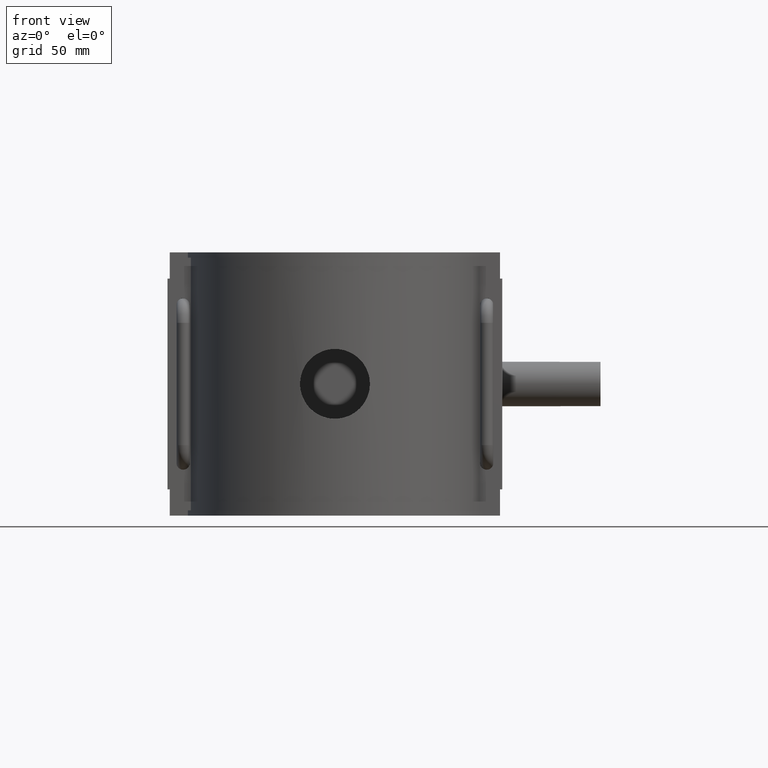
[diagram: clean part render]
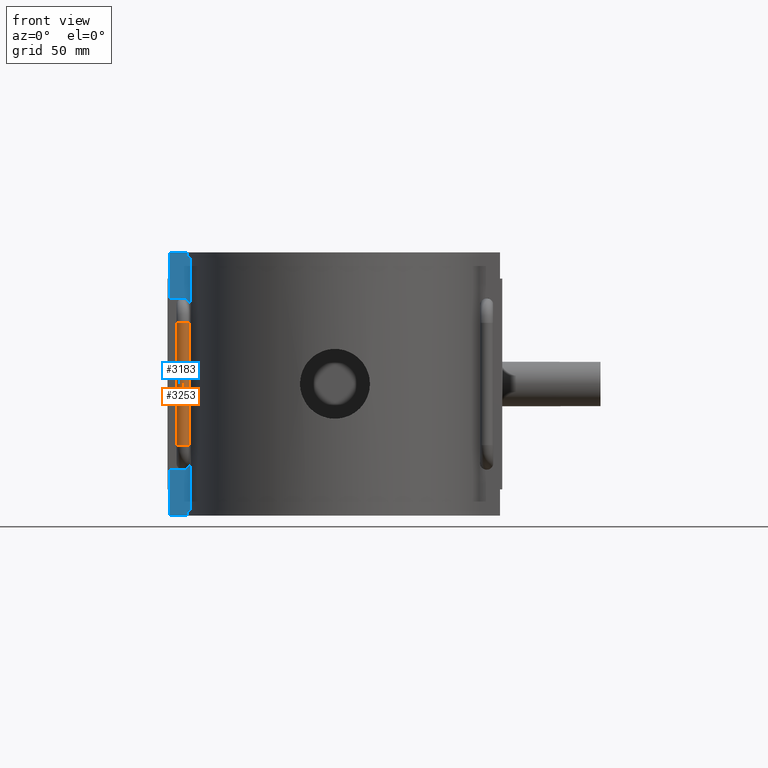
[diagram: same view with the hole feature highlighted: cylindrical wall and planar end face, labeled with their STEP entity ids]
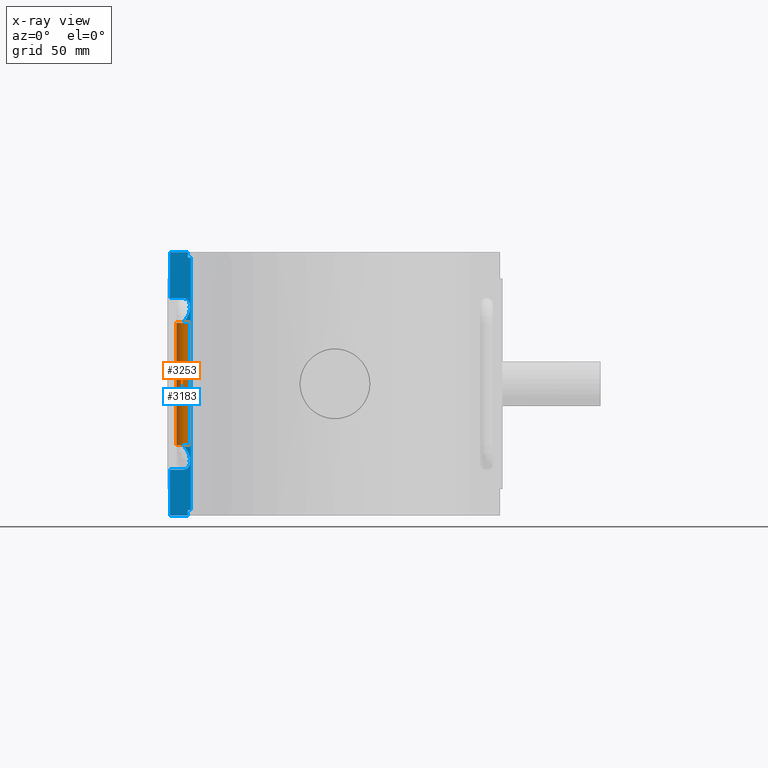
[diagram: x-ray of the same camera — body ghosted, the hole faces saturated]
A machine part, front view. The highlighted faces form one hole feature of diameter 6 mm: the cylindrical wall (entity #3253, orange) and its adjacent planar end face (entity #3183, blue) — they share a circular edge in the B-rep.
The next image is the same camera in x-ray (body ghosted, the hole faces saturated) — the bore reads through the body.
Wall:
#121=LINE('',#5456,#408);
#408=VECTOR('',#3906,54.8);
#806=CIRCLE('',#3498,3.);
#810=CIRCLE('',#3503,3.);
#1025=FACE_OUTER_BOUND('',#1252,.T.);
#1252=EDGE_LOOP('',(#2760,#2761,#2762,#2763));
#1484=VERTEX_POINT('',#5442);
#1485=VERTEX_POINT('',#5455);
#1837=EDGE_CURVE('',#1485,#1484,#121,.T.);
#2000=EDGE_CURVE('',#1485,#1485,#806,.T.);
#2010=EDGE_CURVE('',#1484,#1484,#810,.T.);
#2760=ORIENTED_EDGE('',*,*,#2010,.F.);
#2761=ORIENTED_EDGE('',*,*,#1837,.F.);
#2762=ORIENTED_EDGE('',*,*,#2000,.T.);
#2763=ORIENTED_EDGE('',*,*,#1837,.T.);
#3110=CYLINDRICAL_SURFACE('',#3529,3.);
#3253=ADVANCED_FACE('',(#1025),#3110,.T.);
#3498=AXIS2_PLACEMENT_3D('',#6177,#4176,#4177);
#3503=AXIS2_PLACEMENT_3D('',#6255,#4186,#4187);
#3529=AXIS2_PLACEMENT_3D('',#6338,#4252,#4253);
#3906=DIRECTION('',(0.,-1.62076353959877E-16,1.));
#4176=DIRECTION('center_axis',(0.,6.12323399573677E-17,1.));
#4177=DIRECTION('ref_axis',(1.,0.,0.));
#4186=DIRECTION('center_axis',(0.,6.12323399573677E-17,1.));
#4187=DIRECTION('ref_axis',(1.,0.,0.));
#4252=DIRECTION('center_axis',(0.,-1.62076353959877E-16,1.));
#4253=DIRECTION('ref_axis',(1.,0.,0.));
#5442=CARTESIAN_POINT('',(-68.,-13.75,27.4));
#5455=CARTESIAN_POINT('',(-68.,-13.75,-27.4));
#5456=CARTESIAN_POINT('',(-68.,-13.75,27.4));
#6177=CARTESIAN_POINT('Origin',(-68.,-16.7499999999993,-27.4));
#6255=CARTESIAN_POINT('Origin',(-68.,-16.7499999999993,27.4));
#6338=CARTESIAN_POINT('Origin',(-68.,-16.7499999999993,27.4));
End face:
#108=LINE('',#5412,#395);
#109=LINE('',#5415,#396);
#115=LINE('',#5429,#402);
#116=LINE('',#5431,#403);
#117=LINE('',#5433,#404);
#118=LINE('',#5435,#405);
#119=LINE('',#5437,#406);
#120=LINE('',#5439,#407);
#121=LINE('',#5456,#408);
#122=LINE('',#5473,#409);
#123=LINE('',#5475,#410);
#124=LINE('',#5476,#411);
#395=VECTOR('',#3883,2.36);
#396=VECTOR('',#3886,1.34901356519471);
#402=VECTOR('',#3898,113.28);
#403=VECTOR('',#3899,1.34901356519471);
#404=VECTOR('',#3900,2.36);
#405=VECTOR('',#3901,8.09916616612503);
#406=VECTOR('',#3902,20.6);
#407=VECTOR('',#3903,6.02433467297777);
#408=VECTOR('',#3906,54.8);
#409=VECTOR('',#3909,6.02433467297777);
#410=VECTOR('',#3910,20.6);
#411=VECTOR('',#3911,8.09916616612503);
#645=PLANE('',#3418);
#776=CIRCLE('',#3419,3.);
#777=CIRCLE('',#3420,3.);
#955=FACE_OUTER_BOUND('',#1156,.T.);
#1156=EDGE_LOOP('',(#2408,#2409,#2410,#2411,#2412,#2413,#2414,#2415,#2416,
#2417,#2418,#2419,#2420,#2421,#2422,#2423));
#1343=B_SPLINE_CURVE_WITH_KNOTS('',3,(#5443,#5444,#5445,#5446,#5447,#5448,
#5449,#5450,#5451,#5452,#5453,#5454),.UNSPECIFIED.,.F.,.F.,(4,2,2,2,2,4),
(1.5541826746921,1.64143836729109,1.76844964601288,1.89546092473467,2.1009420105833,
2.30642309643193),.UNSPECIFIED.);
#1344=B_SPLINE_CURVE_WITH_KNOTS('',3,(#5458,#5459,#5460,#5461,#5462,#5463,
#5464,#5465,#5466,#5467,#5468,#5469),.UNSPECIFIED.,.F.,.F.,(4,2,2,2,2,4),
(0.,0.205481085848628,0.410962171697256,0.537973450419046,0.664984729140836,
0.752240421739825),.UNSPECIFIED.);
#1468=VERTEX_POINT('',#5405);
#1471=VERTEX_POINT('',#5410);
#1472=VERTEX_POINT('',#5414);
#1477=VERTEX_POINT('',#5428);
#1478=VERTEX_POINT('',#5430);
#1479=VERTEX_POINT('',#5432);
#1480=VERTEX_POINT('',#5434);
#1481=VERTEX_POINT('',#5436);
#1482=VERTEX_POINT('',#5438);
#1483=VERTEX_POINT('',#5440);
#1484=VERTEX_POINT('',#5442);
#1485=VERTEX_POINT('',#5455);
#1486=VERTEX_POINT('',#5457);
#1487=VERTEX_POINT('',#5470);
#1488=VERTEX_POINT('',#5472);
#1489=VERTEX_POINT('',#5474);
#1821=EDGE_CURVE('',#1468,#1471,#108,.T.);
#1822=EDGE_CURVE('',#1471,#1472,#109,.T.);
#1829=EDGE_CURVE('',#1472,#1477,#115,.T.);
#1830=EDGE_CURVE('',#1477,#1478,#116,.T.);
#1831=EDGE_CURVE('',#1478,#1479,#117,.T.);
#1832=EDGE_CURVE('',#1480,#1479,#118,.T.);
#1833=EDGE_CURVE('',#1481,#1480,#119,.T.);
#1834=EDGE_CURVE('',#1481,#1482,#120,.T.);
#1835=EDGE_CURVE('',#1482,#1483,#776,.T.);
#1836=EDGE_CURVE('',#1483,#1484,#1343,.T.);
#1837=EDGE_CURVE('',#1485,#1484,#121,.T.);
#1838=EDGE_CURVE('',#1485,#1486,#1344,.T.);
#1839=EDGE_CURVE('',#1486,#1487,#777,.T.);
#1840=EDGE_CURVE('',#1487,#1488,#122,.T.);
#1841=EDGE_CURVE('',#1489,#1488,#123,.T.);
#1842=EDGE_CURVE('',#1468,#1489,#124,.T.);
#2408=ORIENTED_EDGE('',*,*,#1821,.T.);
#2409=ORIENTED_EDGE('',*,*,#1822,.T.);
#2410=ORIENTED_EDGE('',*,*,#1829,.T.);
#2411=ORIENTED_EDGE('',*,*,#1830,.T.);
#2412=ORIENTED_EDGE('',*,*,#1831,.T.);
#2413=ORIENTED_EDGE('',*,*,#1832,.F.);
#2414=ORIENTED_EDGE('',*,*,#1833,.F.);
#2415=ORIENTED_EDGE('',*,*,#1834,.T.);
#2416=ORIENTED_EDGE('',*,*,#1835,.T.);
#2417=ORIENTED_EDGE('',*,*,#1836,.T.);
#2418=ORIENTED_EDGE('',*,*,#1837,.F.);
#2419=ORIENTED_EDGE('',*,*,#1838,.T.);
#2420=ORIENTED_EDGE('',*,*,#1839,.T.);
#2421=ORIENTED_EDGE('',*,*,#1840,.T.);
#2422=ORIENTED_EDGE('',*,*,#1841,.F.);
#2423=ORIENTED_EDGE('',*,*,#1842,.F.);
#3183=ADVANCED_FACE('',(#955),#645,.T.);
#3418=AXIS2_PLACEMENT_3D('',#5427,#3896,#3897);
#3419=AXIS2_PLACEMENT_3D('',#5441,#3904,#3905);
#3420=AXIS2_PLACEMENT_3D('',#5471,#3907,#3908);
#3883=DIRECTION('',(0.,0.,1.));
#3886=DIRECTION('',(1.,0.,0.));
#3896=DIRECTION('center_axis',(0.,-1.,0.));
#3897=DIRECTION('ref_axis',(1.,0.,0.));
#3898=DIRECTION('',(0.,0.,1.));
#3899=DIRECTION('',(-1.,0.,0.));
#3900=DIRECTION('',(0.,0.,1.));
#3901=DIRECTION('',(1.,0.,0.));
#3902=DIRECTION('',(0.,0.,1.));
#3903=DIRECTION('',(1.,0.,-7.37158929503087E-16));
#3904=DIRECTION('center_axis',(0.,1.,0.));
#3905=DIRECTION('ref_axis',(-1.,0.,0.));
#3906=DIRECTION('',(0.,-1.62076353959877E-16,1.));
#3907=DIRECTION('center_axis',(0.,1.,0.));
#3908=DIRECTION('ref_axis',(-1.,0.,0.));
#3909=DIRECTION('',(-1.,0.,0.));
#3910=DIRECTION('',(0.,0.,1.));
#3911=DIRECTION('',(-1.,0.,0.));
#5405=CARTESIAN_POINT('',(-65.900833833875,-13.75,-59.));
#5410=CARTESIAN_POINT('',(-65.900833833875,-13.75,-56.64));
#5412=CARTESIAN_POINT('',(-65.900833833875,-13.75,-59.));
#5414=CARTESIAN_POINT('',(-64.5518202686803,-13.75,-56.64));
#5415=CARTESIAN_POINT('',(-37.,-13.75,-56.64));
#5427=CARTESIAN_POINT('Origin',(-74.,-13.75,0.));
#5428=CARTESIAN_POINT('',(-64.5518202686803,-13.75,56.64));
#5429=CARTESIAN_POINT('',(-64.5518202686803,-13.75,0.));
#5430=CARTESIAN_POINT('',(-65.900833833875,-13.75,56.64));
#5431=CARTESIAN_POINT('',(-37.,-13.75,56.64));
#5432=CARTESIAN_POINT('',(-65.900833833875,-13.75,59.));
#5433=CARTESIAN_POINT('',(-65.900833833875,-13.75,59.));
#5434=CARTESIAN_POINT('',(-74.,-13.75,59.));
#5435=CARTESIAN_POINT('',(-74.,-13.75,59.));
#5436=CARTESIAN_POINT('',(-74.,-13.75,38.4));
#5437=CARTESIAN_POINT('',(-74.,-13.75,0.));
#5438=CARTESIAN_POINT('',(-67.9756653270222,-13.75,38.4));
#5439=CARTESIAN_POINT('',(-70.9878326635111,-13.75,38.4));
#5440=CARTESIAN_POINT('',(-65.0929075566291,-13.75,34.5695136140564));
#5441=CARTESIAN_POINT('Origin',(-67.9756653270222,-13.75,35.4));
#5442=CARTESIAN_POINT('',(-68.,-13.75,27.4));
#5443=CARTESIAN_POINT('Ctrl Pts',(-65.092907556629,-13.75,34.5695136140564));
#5444=CARTESIAN_POINT('Ctrl Pts',(-65.0281744318221,-13.75,34.259817704623));
#5445=CARTESIAN_POINT('Ctrl Pts',(-65.,-13.75,33.9358503070612));
#5446=CARTESIAN_POINT('Ctrl Pts',(-65.,-13.75,33.2216270693252));
#5447=CARTESIAN_POINT('Ctrl Pts',(-65.0580680938667,-13.75,32.7627013613539));
#5448=CARTESIAN_POINT('Ctrl Pts',(-65.2771836493012,-13.75,31.867336720585));
#5449=CARTESIAN_POINT('Ctrl Pts',(-65.4370980571854,-13.75,31.4306208843288));
#5450=CARTESIAN_POINT('Ctrl Pts',(-65.889168796984,-13.75,30.41870270221));
#5451=CARTESIAN_POINT('Ctrl Pts',(-66.270333637417,-13.75,29.773838829126));
#5452=CARTESIAN_POINT('Ctrl Pts',(-67.1179526808833,-13.75,28.5365468681762));
#5453=CARTESIAN_POINT('Ctrl Pts',(-67.5805634898982,-13.75,27.9414902061386));
#5454=CARTESIAN_POINT('Ctrl Pts',(-68.,-13.75,27.4));
#5455=CARTESIAN_POINT('',(-68.,-13.75,-27.4));
#5456=CARTESIAN_POINT('',(-68.,-13.75,27.4));
#5457=CARTESIAN_POINT('',(-65.092907556629,-13.75,-34.5695136140564));
#5458=CARTESIAN_POINT('Ctrl Pts',(-68.,-13.75,-27.4));
#5459=CARTESIAN_POINT('Ctrl Pts',(-67.5805634898982,-13.75,-27.9414902061386));
#5460=CARTESIAN_POINT('Ctrl Pts',(-67.1179526808832,-13.75,-28.5365468681762));
#5461=CARTESIAN_POINT('Ctrl Pts',(-66.270333637417,-13.75,-29.773838829126));
#5462=CARTESIAN_POINT('Ctrl Pts',(-65.8891687969839,-13.75,-30.41870270221));
#5463=CARTESIAN_POINT('Ctrl Pts',(-65.4370980571853,-13.75,-31.4306208843288));
#5464=CARTESIAN_POINT('Ctrl Pts',(-65.2771836493012,-13.75,-31.867336720585));
#5465=CARTESIAN_POINT('Ctrl Pts',(-65.0580680938667,-13.75,-32.7627013613539));
#5466=CARTESIAN_POINT('Ctrl Pts',(-65.,-13.75,-33.2216270693252));
#5467=CARTESIAN_POINT('Ctrl Pts',(-65.,-13.75,-33.9358503070612));
#5468=CARTESIAN_POINT('Ctrl Pts',(-65.0281744318221,-13.75,-34.259817704623));
#5469=CARTESIAN_POINT('Ctrl Pts',(-65.092907556629,-13.75,-34.5695136140564));
#5470=CARTESIAN_POINT('',(-67.9756653270222,-13.75,-38.4));
#5471=CARTESIAN_POINT('Origin',(-67.9756653270222,-13.75,-35.4));
#5472=CARTESIAN_POINT('',(-74.,-13.75,-38.4));
#5473=CARTESIAN_POINT('',(-74.,-13.75,-38.4));
#5474=CARTESIAN_POINT('',(-74.,-13.75,-59.));
#5475=CARTESIAN_POINT('',(-74.,-13.75,0.));
#5476=CARTESIAN_POINT('',(-74.,-13.75,-59.));